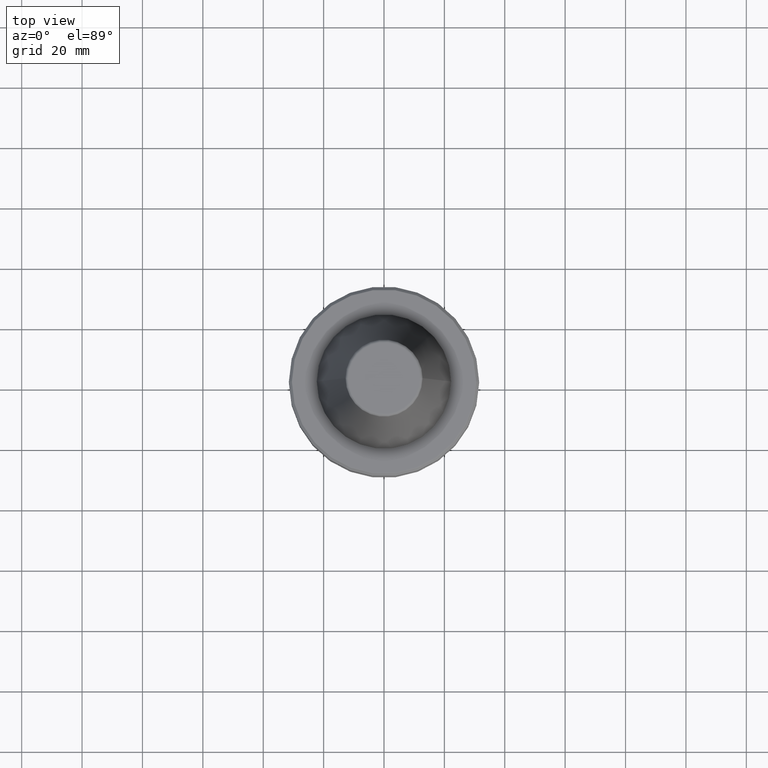
[diagram: clean part render]
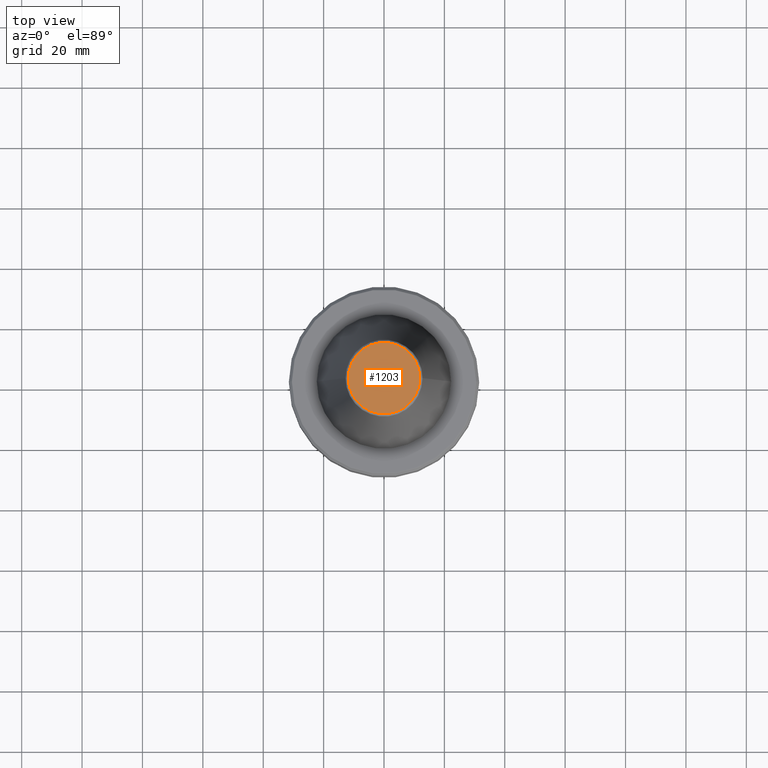
[diagram: same view with one face highlighted and labeled with its STEP entity id]
A machine part, top view. The second image highlights one B-rep face of the part: STEP entity #1203.
In plain terms, the highlighted planar face has unit normal (0, -0, 1).
Its self-contained STEP definition (entity closure, byte-faithful):
#37 = AXIS2_PLACEMENT_3D ( 'NONE', #411, #1069, #502 ) ;
#61 = DIRECTION ( 'NONE',  ( 1.000000000000000000, 0.0000000000000000000, 0.0000000000000000000 ) ) ;
#169 = EDGE_LOOP ( 'NONE', ( #1154, #671 ) ) ;
#180 = CARTESIAN_POINT ( 'NONE',  ( 0.0000000000000000000, 0.0000000000000000000, 65.40000000000000600 ) ) ;
#183 = FACE_OUTER_BOUND ( 'NONE', #169, .T. ) ;
#241 = CARTESIAN_POINT ( 'NONE',  ( 11.82266672057007100, 0.0000000000000000000, 65.40000000000000600 ) ) ;
#256 = VERTEX_POINT ( 'NONE', #737 ) ;
#274 = PLANE ( 'NONE',  #717 ) ;
#284 = DIRECTION ( 'NONE',  ( 1.000000000000000000, 0.0000000000000000000, 0.0000000000000000000 ) ) ;
#411 = CARTESIAN_POINT ( 'NONE',  ( 0.0000000000000000000, 0.0000000000000000000, 65.40000000000000600 ) ) ;
#501 = EDGE_CURVE ( 'NONE', #256, #1055, #818, .T. ) ;
#502 = DIRECTION ( 'NONE',  ( 1.000000000000000000, 0.0000000000000000000, 0.0000000000000000000 ) ) ;
#623 = DIRECTION ( 'NONE',  ( -0.0000000000000000000, -0.0000000000000000000, 1.000000000000000000 ) ) ;
#671 = ORIENTED_EDGE ( 'NONE', *, *, #501, .T. ) ;
#717 = AXIS2_PLACEMENT_3D ( 'NONE', #180, #844, #284 ) ;
#737 = CARTESIAN_POINT ( 'NONE',  ( -11.82266672057007100, 1.508450503654657300E-015, 65.40000000000000600 ) ) ;
#818 = CIRCLE ( 'NONE', #37, 11.82266672057007100 ) ;
#844 = DIRECTION ( 'NONE',  ( 0.0000000000000000000, -0.0000000000000000000, 1.000000000000000000 ) ) ;
#1055 = VERTEX_POINT ( 'NONE', #241 ) ;
#1069 = DIRECTION ( 'NONE',  ( -0.0000000000000000000, -0.0000000000000000000, 1.000000000000000000 ) ) ;
#1091 = EDGE_CURVE ( 'NONE', #1055, #256, #1105, .T. ) ;
#1105 = CIRCLE ( 'NONE', #1127, 11.82266672057007100 ) ;
#1127 = AXIS2_PLACEMENT_3D ( 'NONE', #1193, #623, #61 ) ;
#1154 = ORIENTED_EDGE ( 'NONE', *, *, #1091, .T. ) ;
#1193 = CARTESIAN_POINT ( 'NONE',  ( 0.0000000000000000000, 0.0000000000000000000, 65.40000000000000600 ) ) ;
#1203 = ADVANCED_FACE ( 'NONE', ( #183 ), #274, .T. ) ;